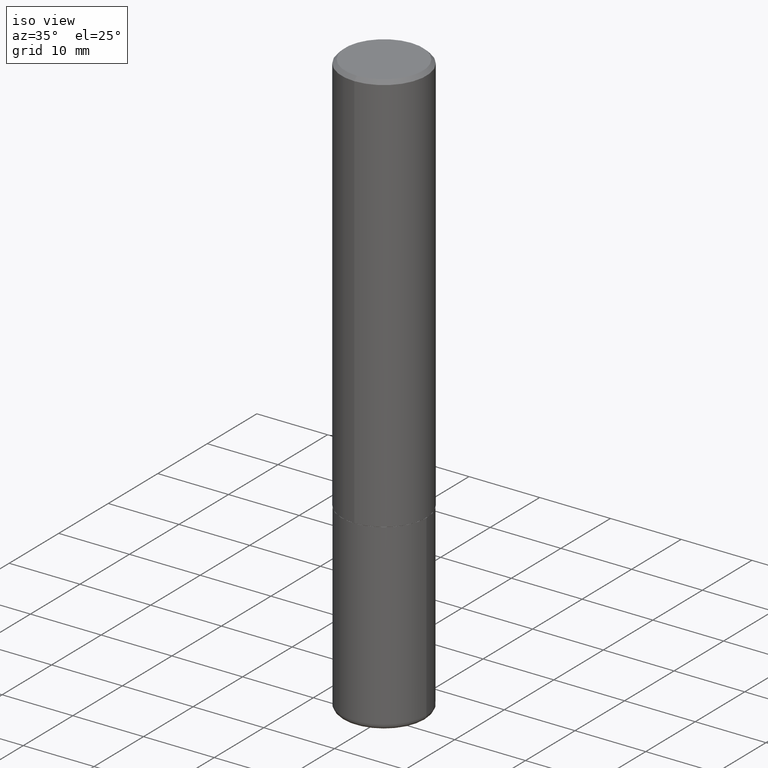
[diagram: clean part render]
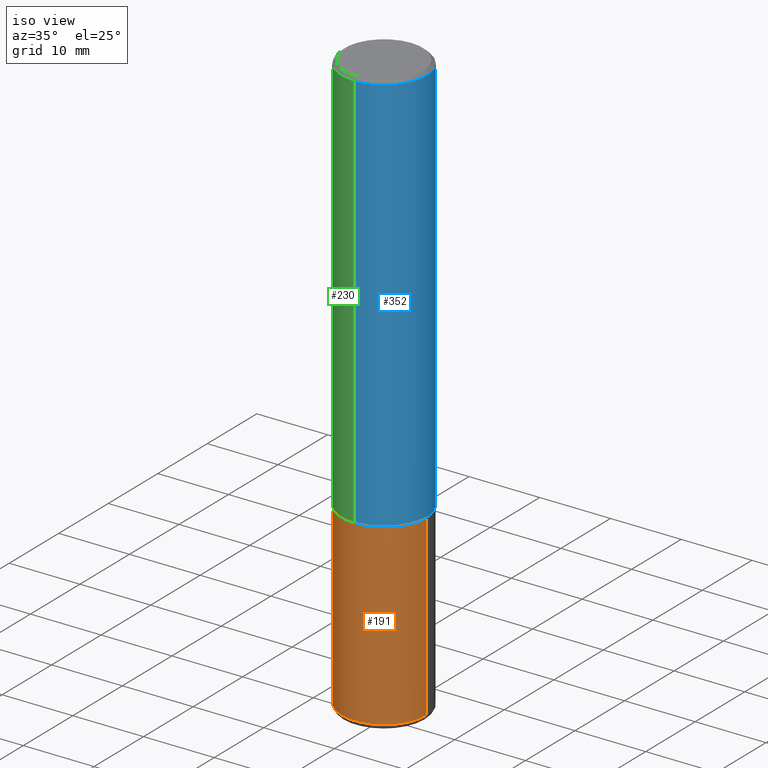
[diagram: same view with three faces highlighted in distinct colors, each labeled with its STEP entity id]
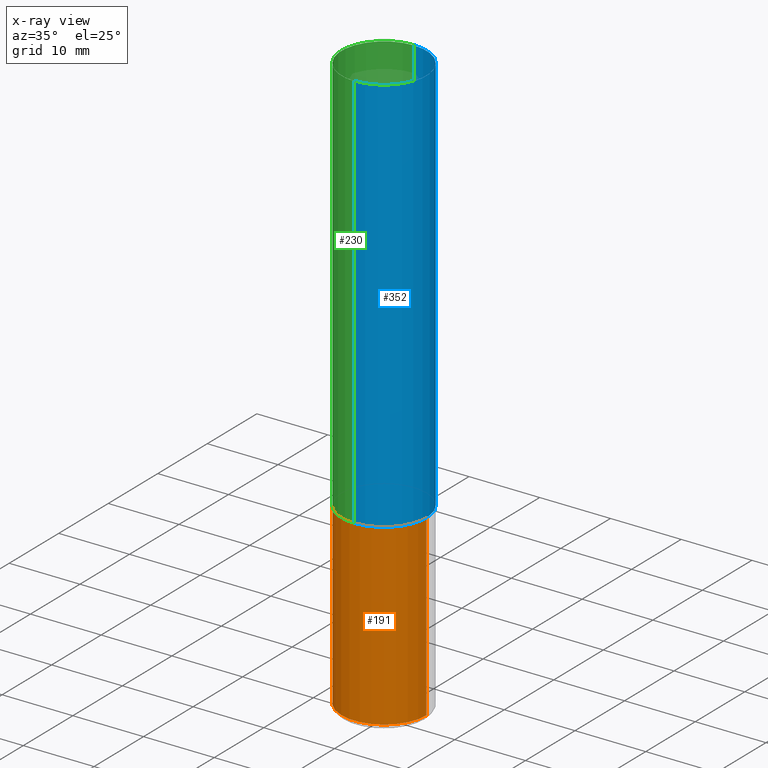
[diagram: x-ray of the same camera — body ghosted, the three highlighted faces saturated]
A machine part, iso view with three faces highlighted in distinct colors.
The next image is the same camera in x-ray (body ghosted, the three faces saturated) — at least one of them is partly hidden behind the body in this view.
Their STEP definitions:

[orange] entity #191 — the highlighted cylindrical surface (partial cylindrical patch) has radius 5.9995 mm, axis along (-0, 0, 1).
#1 = DIRECTION ( 'NONE',  ( -2.445468806185136877E-29, 3.491481338843145188E-15, 1.000000000000000000 ) ) ;
#3 = CARTESIAN_POINT ( 'NONE',  ( 0.2361999999999999933, -9.484609056967400443E-15, -2.244100000000000428 ) ) ;
#4 = VECTOR ( 'NONE', #1, 39.37007874015748143 ) ;
#6 = DIRECTION ( 'NONE',  ( -2.445468806185136597E-29, 3.491481338843145583E-15, 1.000000000000000000 ) ) ;
#9 = AXIS2_PLACEMENT_3D ( 'NONE', #154, #123, #413 ) ;
#12 = ORIENTED_EDGE ( 'NONE', *, *, #24, .T. ) ;
#24 = EDGE_CURVE ( 'NONE', #84, #252, #67, .T. ) ;
#26 = ORIENTED_EDGE ( 'NONE', *, *, #30, .F. ) ;
#30 = EDGE_CURVE ( 'NONE', #84, #211, #381, .T. ) ;
#65 = ORIENTED_EDGE ( 'NONE', *, *, #385, .T. ) ;
#67 = CIRCLE ( 'NONE', #9, 0.2361999999999999655 ) ;
#79 = DIRECTION ( 'NONE',  ( 1.000000000000000000, -6.982962677686269077E-15, 0.000000000000000000 ) ) ;
#84 = VERTEX_POINT ( 'NONE', #347 ) ;
#123 = DIRECTION ( 'NONE',  ( -2.445468806185136597E-29, 3.491481338843145583E-15, 1.000000000000000000 ) ) ;
#140 = CARTESIAN_POINT ( 'NONE',  ( -0.2361999999999999933, -7.891499259769821311E-15, -2.244100000000000428 ) ) ;
#150 = DIRECTION ( 'NONE',  ( -2.445468806185136877E-29, 3.491481338843145188E-15, 1.000000000000000000 ) ) ;
#154 = CARTESIAN_POINT ( 'NONE',  ( 7.917694353785617077E-29, -1.130436913077245307E-14, -3.237700000000000244 ) ) ;
#185 = CARTESIAN_POINT ( 'NONE',  ( 0.2361999999999999933, -1.649375784469496131E-15, 1.151752954443000088E-29 ) ) ;
#191 = ADVANCED_FACE ( 'NONE', ( #234 ), #325, .T. ) ;
#195 = CARTESIAN_POINT ( 'NONE',  ( -0.2361999999999999933, 1.678301941865356591E-15, -1.161852468318208757E-29 ) ) ;
#207 = AXIS2_PLACEMENT_3D ( 'NONE', #272, #270, #79 ) ;
#211 = VERTEX_POINT ( 'NONE', #140 ) ;
#215 = VERTEX_POINT ( 'NONE', #3 ) ;
#234 = FACE_OUTER_BOUND ( 'NONE', #243, .T. ) ;
#243 = EDGE_LOOP ( 'NONE', ( #26, #12, #65, #249 ) ) ;
#249 = ORIENTED_EDGE ( 'NONE', *, *, #306, .F. ) ;
#252 = VERTEX_POINT ( 'NONE', #388 ) ;
#270 = DIRECTION ( 'NONE',  ( -2.445468806185136597E-29, 3.491481338843145583E-15, 1.000000000000000000 ) ) ;
#272 = CARTESIAN_POINT ( 'NONE',  ( 5.487876547960065873E-29, -7.835233272497903917E-15, -2.244100000000000428 ) ) ;
#288 = CIRCLE ( 'NONE', #207, 0.2361999999999999933 ) ;
#292 = CARTESIAN_POINT ( 'NONE',  ( 0.000000000000000000, 0.000000000000000000, 0.000000000000000000 ) ) ;
#299 = LINE ( 'NONE', #185, #409 ) ;
#306 = EDGE_CURVE ( 'NONE', #211, #215, #288, .T. ) ;
#315 = AXIS2_PLACEMENT_3D ( 'NONE', #292, #6, #359 ) ;
#325 = CYLINDRICAL_SURFACE ( 'NONE', #315, 0.2361999999999999933 ) ;
#347 = CARTESIAN_POINT ( 'NONE',  ( -0.2361999999999999655, -9.626067188907095099E-15, -3.237700000000000244 ) ) ;
#359 = DIRECTION ( 'NONE',  ( 1.000000000000000000, -6.982962677686266711E-15, 4.876176775795936353E-29 ) ) ;
#381 = LINE ( 'NONE', #195, #4 ) ;
#385 = EDGE_CURVE ( 'NONE', #252, #215, #299, .T. ) ;
#388 = CARTESIAN_POINT ( 'NONE',  ( 0.2361999999999999655, -1.295374491524194802E-14, -3.237700000000000244 ) ) ;
#409 = VECTOR ( 'NONE', #150, 39.37007874015748143 ) ;
#413 = DIRECTION ( 'NONE',  ( 1.000000000000000000, -6.982962677686265922E-15, 0.000000000000000000 ) ) ;

[blue] entity #352 — the highlighted cylindrical surface (partial cylindrical patch) has radius 5.9995 mm, axis along (-0, 0, 1).
#2 = DIRECTION ( 'NONE',  ( -6.982962677686265922E-15, -1.000000000000000000, 3.469747663417773058E-15 ) ) ;
#17 = ORIENTED_EDGE ( 'NONE', *, *, #182, .F. ) ;
#19 = LINE ( 'NONE', #238, #417 ) ;
#25 = AXIS2_PLACEMENT_3D ( 'NONE', #145, #336, #334 ) ;
#29 = VERTEX_POINT ( 'NONE', #157 ) ;
#37 = DIRECTION ( 'NONE',  ( -2.445221809746292518E-29, 3.491835051801734308E-15, 1.000000000000000000 ) ) ;
#45 = CYLINDRICAL_SURFACE ( 'NONE', #25, 0.2362000000000001598 ) ;
#60 = CARTESIAN_POINT ( 'NONE',  ( -1.620449627073635473E-15, -0.2362000000000001321, -0.01999999999999922673 ) ) ;
#71 = CARTESIAN_POINT ( 'NONE',  ( -1.649375784469497117E-15, -0.2362000000000001598, 8.247714392355702416E-16 ) ) ;
#74 = DIRECTION ( 'NONE',  ( -2.445221809746292518E-29, 3.491835051801734308E-15, 1.000000000000000000 ) ) ;
#86 = VERTEX_POINT ( 'NONE', #60 ) ;
#117 = ORIENTED_EDGE ( 'NONE', *, *, #177, .F. ) ;
#138 = CIRCLE ( 'NONE', #266, 0.2362000000000002709 ) ;
#142 = CARTESIAN_POINT ( 'NONE',  ( 4.890443619492597157E-31, -6.983670103603485970E-17, -0.02000000000000005246 ) ) ;
#145 = CARTESIAN_POINT ( 'NONE',  ( 0.000000000000000000, 0.000000000000000000, 0.000000000000000000 ) ) ;
#152 = DIRECTION ( 'NONE',  ( -2.445221809746292518E-29, 3.491835051801734702E-15, 1.000000000000000000 ) ) ;
#157 = CARTESIAN_POINT ( 'NONE',  ( 1.649375784469496920E-15, 0.2361999999999999933, -0.02000000000000087472 ) ) ;
#169 = LINE ( 'NONE', #71, #219 ) ;
#177 = EDGE_CURVE ( 'NONE', #188, #86, #169, .T. ) ;
#182 = EDGE_CURVE ( 'NONE', #86, #29, #254, .T. ) ;
#188 = VERTEX_POINT ( 'NONE', #264 ) ;
#206 = ORIENTED_EDGE ( 'NONE', *, *, #387, .T. ) ;
#219 = VECTOR ( 'NONE', #297, 39.37007874015748143 ) ;
#238 = CARTESIAN_POINT ( 'NONE',  ( 1.678301941865357577E-15, 0.2362000000000001598, -8.247714392355702416E-16 ) ) ;
#246 = CARTESIAN_POINT ( 'NONE',  ( 1.678301941865385779E-15, 0.2361999999999924715, -2.243100000000000982 ) ) ;
#247 = EDGE_CURVE ( 'NONE', #188, #340, #138, .T. ) ;
#254 = CIRCLE ( 'NONE', #279, 0.2362000000000000766 ) ;
#264 = CARTESIAN_POINT ( 'NONE',  ( -1.649375784469443080E-15, -0.2362000000000080979, -2.243099999999999206 ) ) ;
#266 = AXIS2_PLACEMENT_3D ( 'NONE', #323, #37, #2 ) ;
#279 = AXIS2_PLACEMENT_3D ( 'NONE', #142, #74, #357 ) ;
#297 = DIRECTION ( 'NONE',  ( -2.445221809746292518E-29, 3.491835051801734702E-15, 1.000000000000000000 ) ) ;
#323 = CARTESIAN_POINT ( 'NONE',  ( 5.484877041441908919E-29, -7.832535204696471708E-15, -2.243100000000000094 ) ) ;
#334 = DIRECTION ( 'NONE',  ( -6.982962677686265922E-15, -1.000000000000000000, 3.491835051801734308E-15 ) ) ;
#335 = ORIENTED_EDGE ( 'NONE', *, *, #247, .T. ) ;
#336 = DIRECTION ( 'NONE',  ( -2.445221809746292518E-29, 3.491835051801734308E-15, 1.000000000000000000 ) ) ;
#340 = VERTEX_POINT ( 'NONE', #246 ) ;
#352 = ADVANCED_FACE ( 'NONE', ( #369 ), #45, .T. ) ;
#357 = DIRECTION ( 'NONE',  ( -6.982962677686265922E-15, -1.000000000000000000, 3.487819265831410167E-15 ) ) ;
#369 = FACE_OUTER_BOUND ( 'NONE', #375, .T. ) ;
#375 = EDGE_LOOP ( 'NONE', ( #335, #206, #17, #117 ) ) ;
#387 = EDGE_CURVE ( 'NONE', #340, #29, #19, .T. ) ;
#417 = VECTOR ( 'NONE', #152, 39.37007874015748143 ) ;

[green] entity #230 — the highlighted cylindrical surface (partial cylindrical patch) has radius 5.9995 mm, axis along (-0, 0, 1).
#19 = LINE ( 'NONE', #238, #417 ) ;
#29 = VERTEX_POINT ( 'NONE', #157 ) ;
#43 = EDGE_CURVE ( 'NONE', #29, #86, #322, .T. ) ;
#52 = EDGE_LOOP ( 'NONE', ( #236, #402, #190, #386 ) ) ;
#59 = AXIS2_PLACEMENT_3D ( 'NONE', #75, #262, #228 ) ;
#60 = CARTESIAN_POINT ( 'NONE',  ( -1.620449627073635473E-15, -0.2362000000000001321, -0.01999999999999922673 ) ) ;
#71 = CARTESIAN_POINT ( 'NONE',  ( -1.649375784469497117E-15, -0.2362000000000001598, 8.247714392355702416E-16 ) ) ;
#75 = CARTESIAN_POINT ( 'NONE',  ( 0.000000000000000000, 0.000000000000000000, 0.000000000000000000 ) ) ;
#86 = VERTEX_POINT ( 'NONE', #60 ) ;
#98 = DIRECTION ( 'NONE',  ( -6.982962677686265922E-15, -1.000000000000000000, 3.469747663417773058E-15 ) ) ;
#137 = CYLINDRICAL_SURFACE ( 'NONE', #59, 0.2362000000000001598 ) ;
#147 = EDGE_CURVE ( 'NONE', #340, #188, #287, .T. ) ;
#152 = DIRECTION ( 'NONE',  ( -2.445221809746292518E-29, 3.491835051801734702E-15, 1.000000000000000000 ) ) ;
#157 = CARTESIAN_POINT ( 'NONE',  ( 1.649375784469496920E-15, 0.2361999999999999933, -0.02000000000000087472 ) ) ;
#168 = DIRECTION ( 'NONE',  ( -2.445221809746292518E-29, 3.491835051801734308E-15, 1.000000000000000000 ) ) ;
#169 = LINE ( 'NONE', #71, #219 ) ;
#173 = CARTESIAN_POINT ( 'NONE',  ( 5.484877041441908919E-29, -7.832535204696471708E-15, -2.243100000000000094 ) ) ;
#177 = EDGE_CURVE ( 'NONE', #188, #86, #169, .T. ) ;
#188 = VERTEX_POINT ( 'NONE', #264 ) ;
#190 = ORIENTED_EDGE ( 'NONE', *, *, #177, .T. ) ;
#219 = VECTOR ( 'NONE', #297, 39.37007874015748143 ) ;
#225 = DIRECTION ( 'NONE',  ( -6.982962677686265922E-15, -1.000000000000000000, 3.487819265831410167E-15 ) ) ;
#228 = DIRECTION ( 'NONE',  ( -6.982962677686265922E-15, -1.000000000000000000, 3.491835051801734308E-15 ) ) ;
#230 = ADVANCED_FACE ( 'NONE', ( #361 ), #137, .T. ) ;
#236 = ORIENTED_EDGE ( 'NONE', *, *, #387, .F. ) ;
#238 = CARTESIAN_POINT ( 'NONE',  ( 1.678301941865357577E-15, 0.2362000000000001598, -8.247714392355702416E-16 ) ) ;
#246 = CARTESIAN_POINT ( 'NONE',  ( 1.678301941865385779E-15, 0.2361999999999924715, -2.243100000000000982 ) ) ;
#262 = DIRECTION ( 'NONE',  ( -2.445221809746292518E-29, 3.491835051801734308E-15, 1.000000000000000000 ) ) ;
#264 = CARTESIAN_POINT ( 'NONE',  ( -1.649375784469443080E-15, -0.2362000000000080979, -2.243099999999999206 ) ) ;
#287 = CIRCLE ( 'NONE', #348, 0.2362000000000002709 ) ;
#297 = DIRECTION ( 'NONE',  ( -2.445221809746292518E-29, 3.491835051801734702E-15, 1.000000000000000000 ) ) ;
#322 = CIRCLE ( 'NONE', #330, 0.2362000000000000766 ) ;
#330 = AXIS2_PLACEMENT_3D ( 'NONE', #411, #408, #225 ) ;
#340 = VERTEX_POINT ( 'NONE', #246 ) ;
#348 = AXIS2_PLACEMENT_3D ( 'NONE', #173, #168, #98 ) ;
#361 = FACE_OUTER_BOUND ( 'NONE', #52, .T. ) ;
#386 = ORIENTED_EDGE ( 'NONE', *, *, #43, .F. ) ;
#387 = EDGE_CURVE ( 'NONE', #340, #29, #19, .T. ) ;
#402 = ORIENTED_EDGE ( 'NONE', *, *, #147, .T. ) ;
#408 = DIRECTION ( 'NONE',  ( -2.445221809746292518E-29, 3.491835051801734308E-15, 1.000000000000000000 ) ) ;
#411 = CARTESIAN_POINT ( 'NONE',  ( 4.890443619492597157E-31, -6.983670103603485970E-17, -0.02000000000000005246 ) ) ;
#417 = VECTOR ( 'NONE', #152, 39.37007874015748143 ) ;